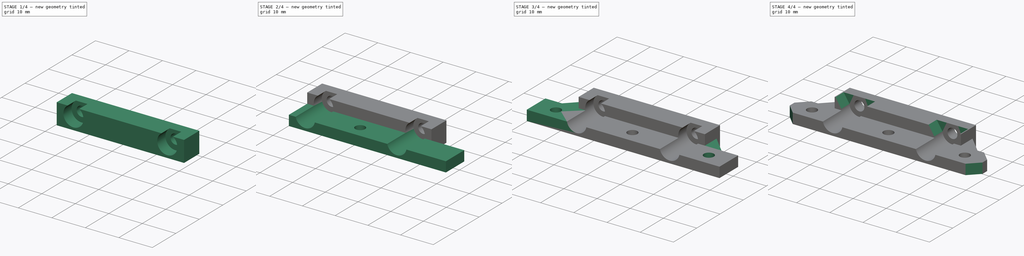
[diagram: build sequence overview — one tinted view per stage of 4, left to right]
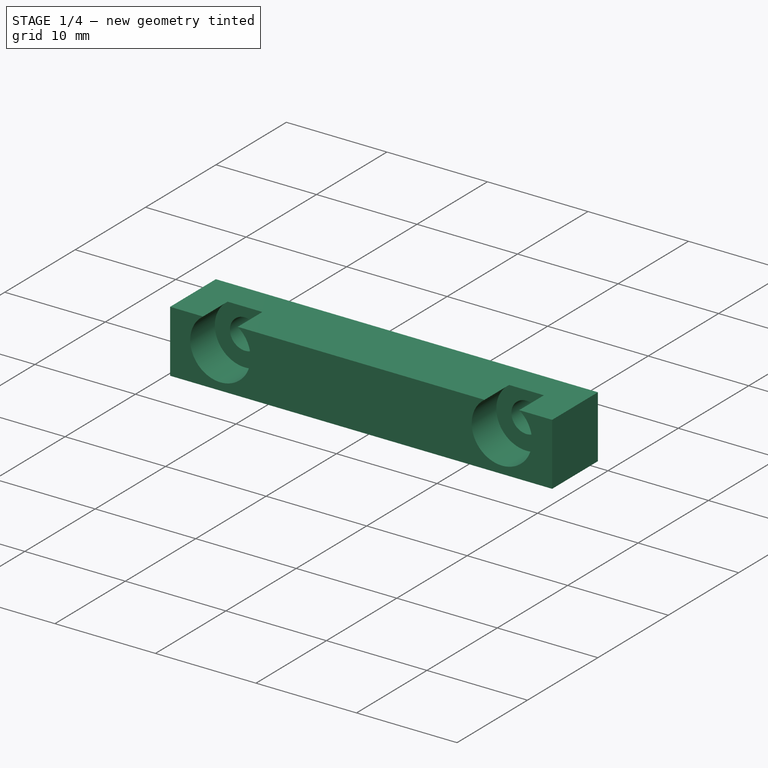
[diagram: stage 1 of 4 — iso view after this stage's code; geometry added in this stage tinted green]
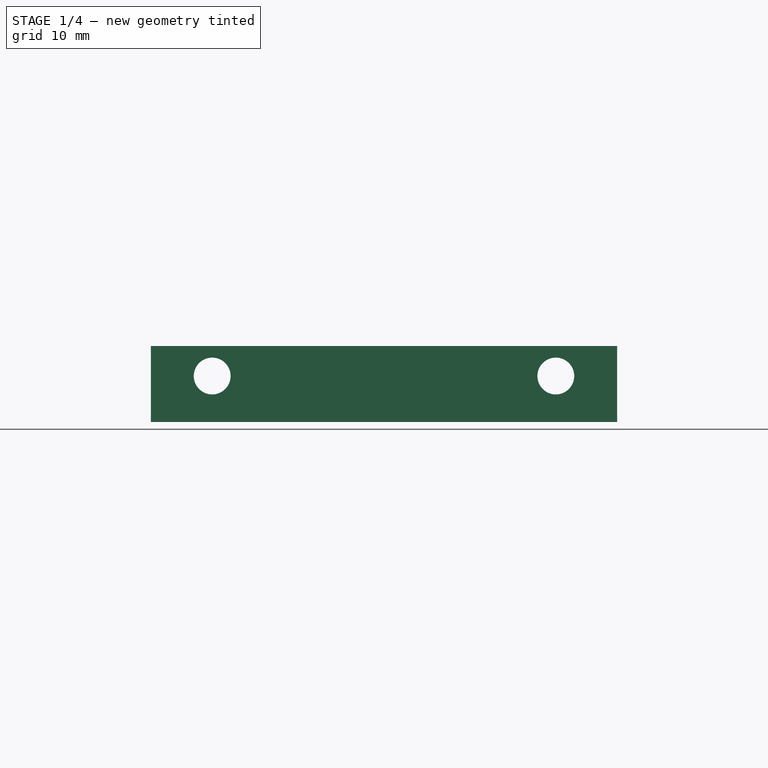
[diagram: stage 1 of 4 — front view after this stage's code; geometry added in this stage tinted green]
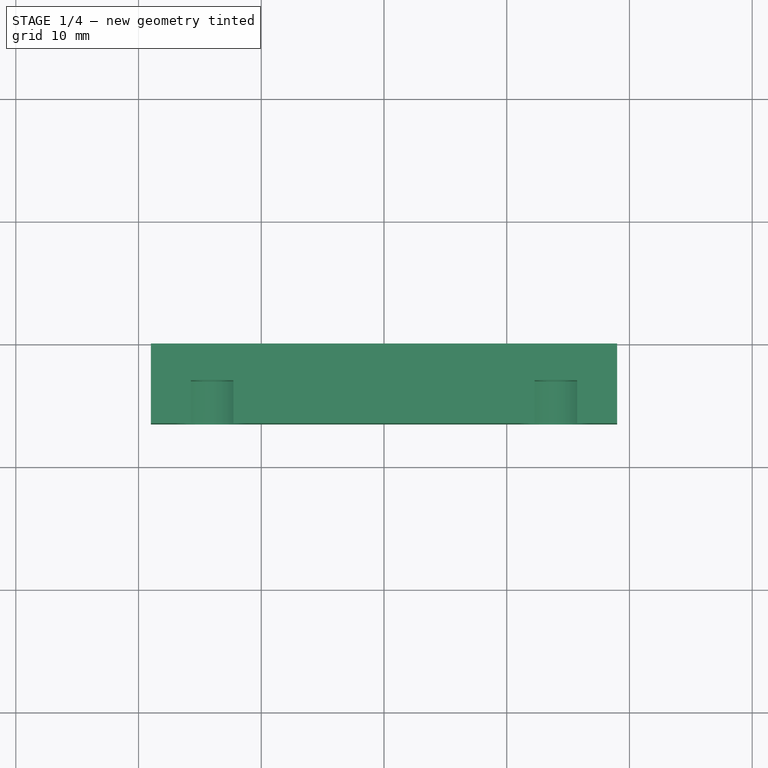
[diagram: stage 1 of 4 — top view after this stage's code; geometry added in this stage tinted green]
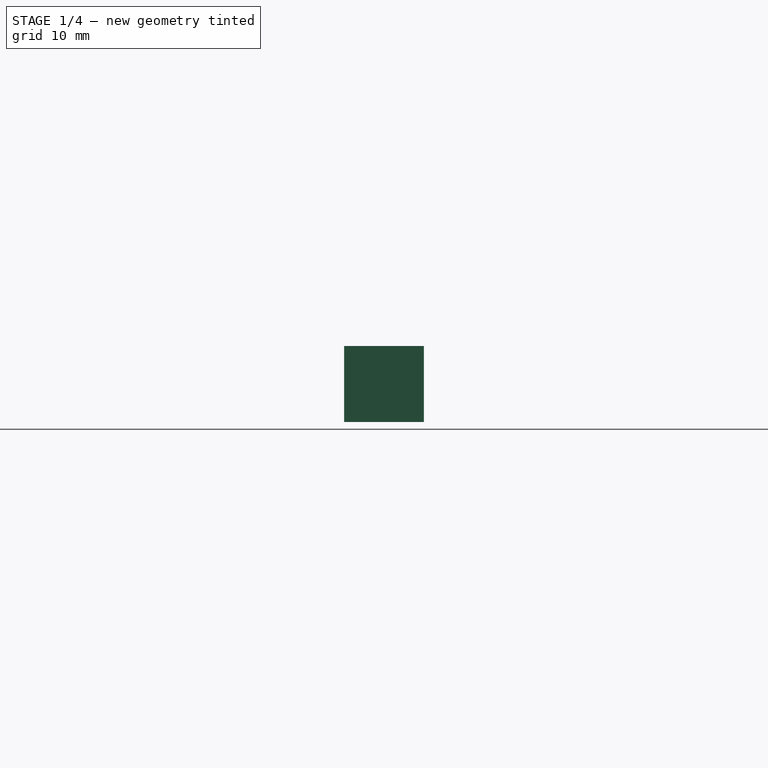
[diagram: stage 1 of 4 — right view after this stage's code; geometry added in this stage tinted green]
FCSTD DOCUMENT  (FreeCAD 1.0R39109 (Git))
Label: Bolt Down Brakets
License: All rights reserved
LicenseURL: https://en.wikipedia.org/wiki/All_rights_reserved
objects: Sketcher::SketchObject×7, PartDesign::Pad×5, PartDesign::Chamfer×3, PartDesign::Pocket×2, PartDesign::Body×1
note: 45 computed .brp shape members not serialized (recipe doc carries the construction recipe); baked Part::Feature solids carry a one-line shape summary decoded from their .brp

FEATURE [Sketcher::SketchObject] Sketch
  ArcFitTolerance = 1e-06
  AttachmentSupport = -> [XZ_Plane]
  FullyConstrained = true
  MakeInternals = false
  MapMode = 5
  Placement = pos=(0,0,0) rot=(1,0,0;1.5708rad)
  sketch-geometry (11):
    g0: LineSegment [constr] StartX=0 StartY=0 StartZ=0 EndX=0 EndY=3.75 EndZ=0
    g1: LineSegment [constr] StartX=0 StartY=3.75 StartZ=0 EndX=14 EndY=3.75 EndZ=0
    g2: LineSegment [constr] StartX=0 StartY=3.75 StartZ=0 EndX=-14 EndY=3.75 EndZ=0
    g3: Circle CenterX=-14 CenterY=3.75 CenterZ=0 NormalX=0 NormalY=0 NormalZ=1 AngleXU=0 Radius=1.5
    g4: Circle CenterX=14 CenterY=3.75 CenterZ=0 NormalX=0 NormalY=0 NormalZ=1 AngleXU=0 Radius=1.5
    g5: LineSegment [constr] StartX=0 StartY=0 StartZ=0 EndX=-19 EndY=0 EndZ=0
    g6: LineSegment [constr] StartX=-19 StartY=0 StartZ=0 EndX=-19 EndY=6.2 EndZ=0
    g7: LineSegment StartX=-19 StartY=6.2 StartZ=0 EndX=-19 EndY=0 EndZ=0
    g8: LineSegment StartX=-19 StartY=0 StartZ=0 EndX=19 EndY=0 EndZ=0
    g9: LineSegment StartX=19 StartY=0 StartZ=0 EndX=19 EndY=6.2 EndZ=0
    g10: LineSegment StartX=19 StartY=6.2 StartZ=0 EndX=-19 EndY=6.2 EndZ=0
  constraints (30):
    c: Distance(g0) = 3.75
    c: Coincident(g0,g-1)
    c: PointOnObject(g0,g-2)
    c: Distance(g1) = 14
    c: Coincident(g1,g0)
    c: Horizontal(g1)
    c: Coincident(g2,g0)
    c: Horizontal(g2)
    c: Equal(g2,g1)
    c: Diameter(g3) = 3
    c: Coincident(g3,g2)
    c: Diameter(g4) = 3
    c: Coincident(g4,g1)
    c: Distance(g5) = 19
    c: Coincident(g5,g0)
    c: Horizontal(g5)
    c: Distance(g6) = 6.2
    c: Coincident(g6,g5)
    c: Vertical(g6)
    c: Coincident(g7,g8)
    c: Coincident(g8,g9)
    c: Coincident(g9,g10)
    c: Coincident(g10,g7)
    c: Vertical(g7)
    c: Vertical(g9)
    c: Horizontal(g8)
    c: Horizontal(g10)
    c: Distance(g7,g9) = 38
    c: Coincident(g7,g6)
    c: PointOnObject(g8,g-1)
FEATURE [PartDesign::Pad] Pad
  Direction = (0,-1,2e-16)
  Length = 3
  Length2 = 10
  Placement = pos=(0,0,0) rot=(1,0,0;1.5708rad)
  Profile = -> Sketch
  ReferenceAxis = -> Sketch [N_Axis]
  Refine = true
  Suppressed = false
  Type = 0
FEATURE [Sketcher::SketchObject] Sketch001
  ArcFitTolerance = 1e-06
  AttachmentSupport = -> [Pad]
  ExternalGeometry = -> [Pad]
  FullyConstrained = true
  MakeInternals = false
  MapMode = 5
  Placement = pos=(0,-3,0) rot=(1,0,0;1.5708rad)
  sketch-geometry (14):
    g0: Circle [constr] CenterX=-14 CenterY=3.75 CenterZ=0 NormalX=0 NormalY=0 NormalZ=1 AngleXU=0 Radius=3
    g1: Circle [constr] CenterX=14 CenterY=3.75 CenterZ=0 NormalX=0 NormalY=0 NormalZ=1 AngleXU=0 Radius=3
    g2: GeomPoint [constr] X=-12.2687 Y=6.2 Z=0
    g3: GeomPoint [constr] X=-15.7313 Y=6.2 Z=0
    g4: GeomPoint [constr] X=12.2687 Y=6.2 Z=0
    g5: GeomPoint [constr] X=15.7313 Y=6.2 Z=0
    g6: ArcOfCircle CenterX=-14 CenterY=3.75 CenterZ=0 NormalX=0 NormalY=0 NormalZ=1 AngleXU=0 Radius=3 StartAngle=2.18598 EndAngle=7.2388
    g7: ArcOfCircle CenterX=14 CenterY=3.75 CenterZ=0 NormalX=0 NormalY=0 NormalZ=1 AngleXU=0 Radius=3 StartAngle=2.18598 EndAngle=7.2388
    g8: LineSegment StartX=-12.2687 StartY=6.2 StartZ=0 EndX=12.2687 EndY=6.2 EndZ=0
    g9: LineSegment StartX=15.7313 StartY=6.2 StartZ=0 EndX=19 EndY=6.2 EndZ=0
    g10: LineSegment StartX=19 StartY=6.2 StartZ=0 EndX=19 EndY=0 EndZ=0
    g11: LineSegment StartX=19 StartY=0 StartZ=0 EndX=-19 EndY=0 EndZ=0
    g12: LineSegment StartX=-19 StartY=0 StartZ=0 EndX=-19 EndY=6.2 EndZ=0
    g13: LineSegment StartX=-19 StartY=6.2 StartZ=0 EndX=-15.7313 EndY=6.2 EndZ=0
  constraints (30):
    c: Diameter(g0) = 6
    c: Coincident(g0,g-8)
    c: Diameter(g1) = 6
    c: Coincident(g1,g-3)
    c: PointOnObject(g2,g0)
    c: PointOnObject(g3,g0)
    c: PointOnObject(g4,g1)
    c: PointOnObject(g5,g1)
    c: PointOnObject(g2,g-4)
    c: PointOnObject(g3,g-4)
    c: PointOnObject(g4,g-4)
    c: PointOnObject(g5,g-4)
    c: Coincident(g6,g0)
    c: Coincident(g6,g3)
    c: PointOnObject(g6,g-4)
    c: Coincident(g7,g1)
    c: Coincident(g7,g4)
    c: PointOnObject(g7,g-4)
    c: Coincident(g8,g6)
    c: Coincident(g8,g4)
    c: Coincident(g9,g7)
    c: Coincident(g9,g-5)
    c: Coincident(g10,g9)
    c: Coincident(g10,g-6)
    c: Coincident(g10,g11)
    c: Coincident(g11,g-7)
    c: Coincident(g11,g12)
    c: Coincident(g12,g-7)
    c: Coincident(g12,g13)
    c: Coincident(g13,g3)
FEATURE [PartDesign::Pad] Pad001
  BaseFeature = -> Pad
  Direction = (0,-1,2e-16)
  Length = 3.5
  Length2 = 10
  Placement = pos=(0,0,0) rot=(1,0,0;1.5708rad)
  Profile = -> Sketch001
  ReferenceAxis = -> Sketch001 [N_Axis]
  Refine = true
  Suppressed = false
  Type = 0
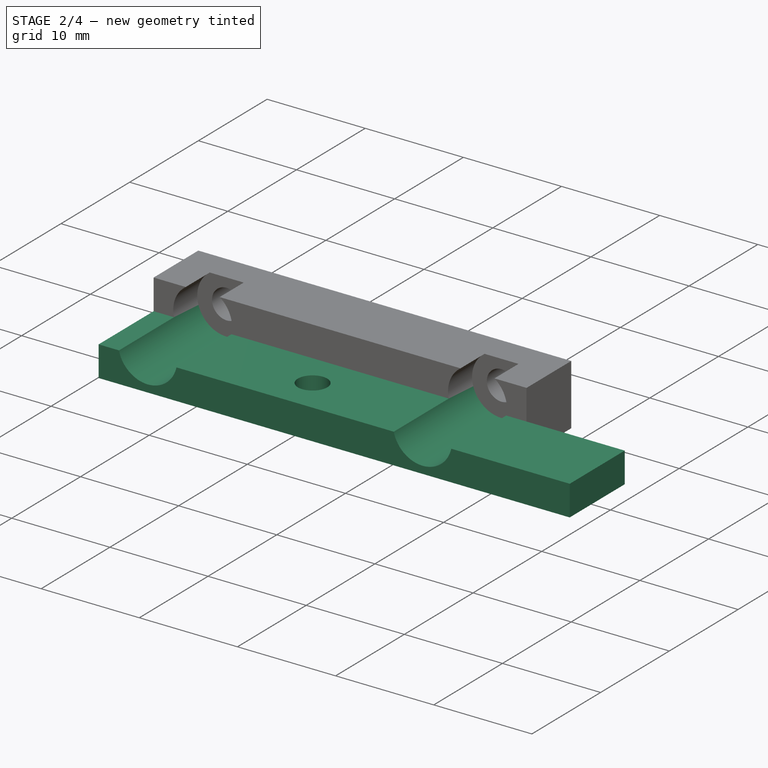
[diagram: stage 2 of 4 — iso view after this stage's code; geometry added in this stage tinted green]
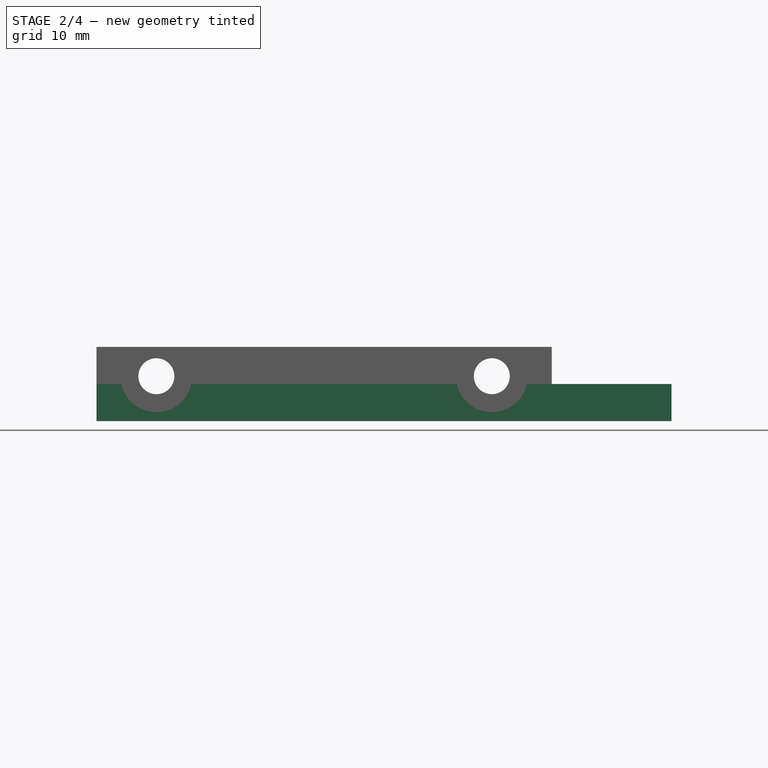
[diagram: stage 2 of 4 — front view after this stage's code; geometry added in this stage tinted green]
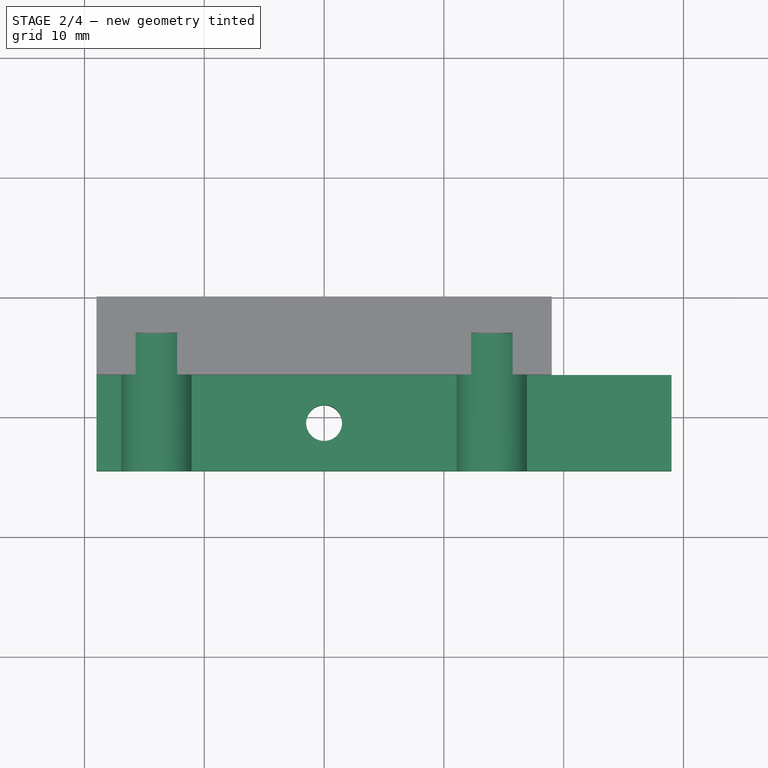
[diagram: stage 2 of 4 — top view after this stage's code; geometry added in this stage tinted green]
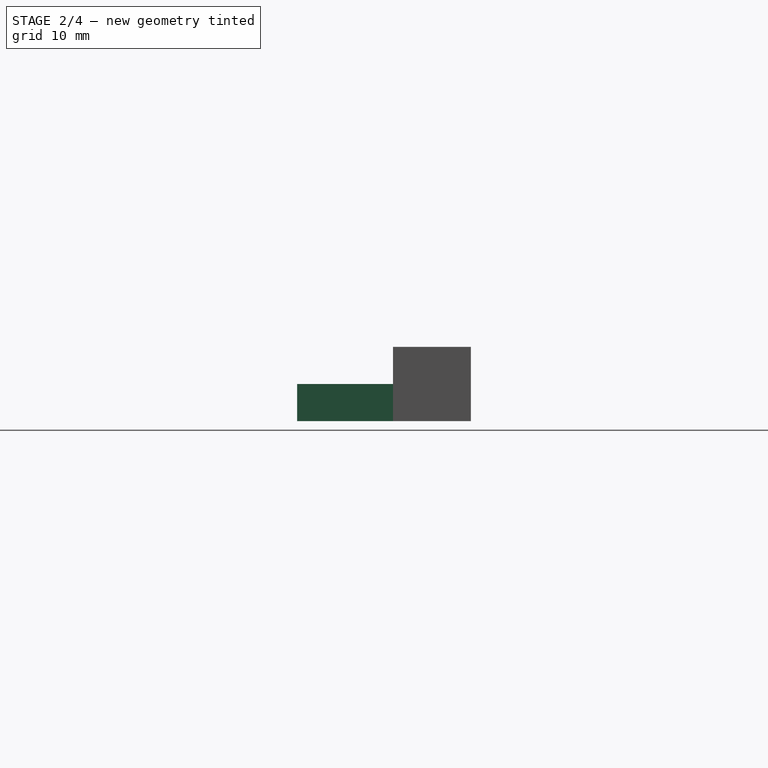
[diagram: stage 2 of 4 — right view after this stage's code; geometry added in this stage tinted green]
FEATURE [Sketcher::SketchObject] Sketch002
  ArcFitTolerance = 1e-06
  AttachmentSupport = -> [Pad001]
  ExternalGeometry = -> [Pad001]
  FullyConstrained = true
  MakeInternals = false
  MapMode = 5
  Placement = pos=(0,-6.5,0) rot=(1,0,0;1.5708rad)
  sketch-geometry (10):
    g0: LineSegment StartX=-19 StartY=0 StartZ=0 EndX=-19 EndY=3.1 EndZ=0
    g1: LineSegment StartX=19 StartY=0 StartZ=0 EndX=19 EndY=3.1 EndZ=0
    g2: LineSegment StartX=-19 StartY=3.1 StartZ=0 EndX=-16.9287 EndY=3.1 EndZ=0
    g3: LineSegment StartX=-19 StartY=0 StartZ=0 EndX=19 EndY=0 EndZ=0
    g4: LineSegment StartX=19 StartY=3.1 StartZ=0 EndX=16.9287 EndY=3.1 EndZ=0
    g5: GeomPoint [constr] X=-11.0713 Y=3.1 Z=0
    g6: GeomPoint [constr] X=11.0713 Y=3.1 Z=0
    g7: ArcOfCircle CenterX=-14 CenterY=3.75 CenterZ=0 NormalX=0 NormalY=0 NormalZ=1 AngleXU=0 Radius=3 StartAngle=3.35999 EndAngle=6.06479
    g8: ArcOfCircle CenterX=14 CenterY=3.75 CenterZ=0 NormalX=0 NormalY=0 NormalZ=1 AngleXU=0 Radius=3 StartAngle=3.35999 EndAngle=6.06479
    g9: LineSegment StartX=-11.0713 StartY=3.1 StartZ=0 EndX=11.0713 EndY=3.1 EndZ=0
  constraints (24):
    c: Coincident(g0,g-10)
    c: Symmetric(g-8,g-8,g0)
    c: Coincident(g1,g-10)
    c: Symmetric(g-7,g-7,g1)
    c: Coincident(g2,g0)
    c: PointOnObject(g2,g-3)
    c: Horizontal(g2)
    c: Coincident(g3,g0)
    c: Coincident(g3,g1)
    c: Coincident(g4,g1)
    c: PointOnObject(g4,g-5)
    c: Horizontal(g4)
    c: PointOnObject(g5,g-3)
    c: PointOnObject(g6,g-5)
    c: Horizontal(g5,g2)
    c: Horizontal(g6,g4)
    c: Coincident(g7,g-3)
    c: Coincident(g7,g5)
    c: PointOnObject(g7,g2)
    c: Coincident(g8,g-5)
    c: Coincident(g8,g6)
    c: PointOnObject(g8,g4)
    c: Coincident(g9,g5)
    c: Coincident(g9,g6)
FEATURE [PartDesign::Pad] Pad002
  BaseFeature = -> Pad001
  Direction = (0,-1,2e-16)
  Length = 8
  Length2 = 10
  Placement = pos=(0,0,0) rot=(1,0,0;1.5708rad)
  Profile = -> Sketch002
  ReferenceAxis = -> Sketch002 [N_Axis]
  Refine = true
  Suppressed = false
  Type = 0
FEATURE [Sketcher::SketchObject] Sketch003
  ArcFitTolerance = 1e-06
  AttachmentSupport = -> [Pad002]
  ExternalGeometry = -> [Pad002]
  FullyConstrained = true
  MakeInternals = false
  MapMode = 5
  Placement = pos=(0,7e-16,3.1) rot=(0,0,1;3.14159rad)
  sketch-geometry (5):
    g0: GeomPoint X=2e-16 Y=14.5 Z=0
    g1: GeomPoint X=11.0713 Y=10.5 Z=0
    g2: LineSegment [constr] StartX=2e-16 StartY=14.5 StartZ=0 EndX=0 EndY=10.5 EndZ=0
    g3: LineSegment [constr] StartX=0 StartY=10.5 StartZ=0 EndX=11.0713 EndY=10.5 EndZ=0
    g4: Circle CenterX=0 CenterY=10.5 CenterZ=0 NormalX=0 NormalY=0 NormalZ=1 AngleXU=0 Radius=1.5
  constraints (9):
    c: Symmetric(g-3,g-3,g0)
    c: Symmetric(g-4,g-4,g1)
    c: Coincident(g2,g0)
    c: PointOnObject(g2,g-2)
    c: Coincident(g2,g3)
    c: Coincident(g3,g1)
    c: Perpendicular(g3,g2)
    c: Diameter(g4) = 3
    c: Coincident(g4,g2)
FEATURE [PartDesign::Pocket] Pocket
  BaseFeature = -> Pad002
  Direction = (0,0,-1)
  Length = 5
  Length2 = 5
  Placement = pos=(0,0,0) rot=(1,0,0;1.5708rad)
  Profile = -> Sketch003
  ReferenceAxis = -> Sketch003 [N_Axis]
  Refine = true
  Suppressed = false
  Type = 1
FEATURE [Sketcher::SketchObject] Sketch004
  ArcFitTolerance = 1e-06
  AttachmentSupport = -> [Pocket]
  ExternalGeometry = -> [Pocket]
  FullyConstrained = true
  MakeInternals = false
  MapMode = 5
  Placement = pos=(19,-5.8e-15,0) rot=(0.707107,0,0.707107;3.14159rad)
  sketch-geometry (4):
    g0: LineSegment StartX=3.1 StartY=6.5 StartZ=0 EndX=1.3e-15 EndY=6.5 EndZ=0
    g1: LineSegment StartX=3.1 StartY=6.5 StartZ=0 EndX=3.1 EndY=14.5 EndZ=0
    g2: LineSegment StartX=0 StartY=14.5 StartZ=0 EndX=3.1 EndY=14.5 EndZ=0
    g3: LineSegment StartX=0 StartY=14.5 StartZ=0 EndX=1.3e-15 EndY=6.5 EndZ=0
  constraints (9):
    c: Coincident(g0,g-3)
    c: PointOnObject(g0,g-5)
    c: Horizontal(g0)
    c: Coincident(g1,g0)
    c: Coincident(g1,g-4)
    c: Coincident(g2,g-5)
    c: Coincident(g2,g1)
    c: Coincident(g3,g2)
    c: Coincident(g3,g0)
FEATURE [PartDesign::Pad] Pad003
  BaseFeature = -> Pocket
  Direction = (1,0,-2e-16)
  Length = 10
  Length2 = 10
  Placement = pos=(0,0,0) rot=(1,0,0;1.5708rad)
  Profile = -> Sketch004
  ReferenceAxis = -> Sketch004 [N_Axis]
  Refine = true
  Suppressed = false
  Type = 0
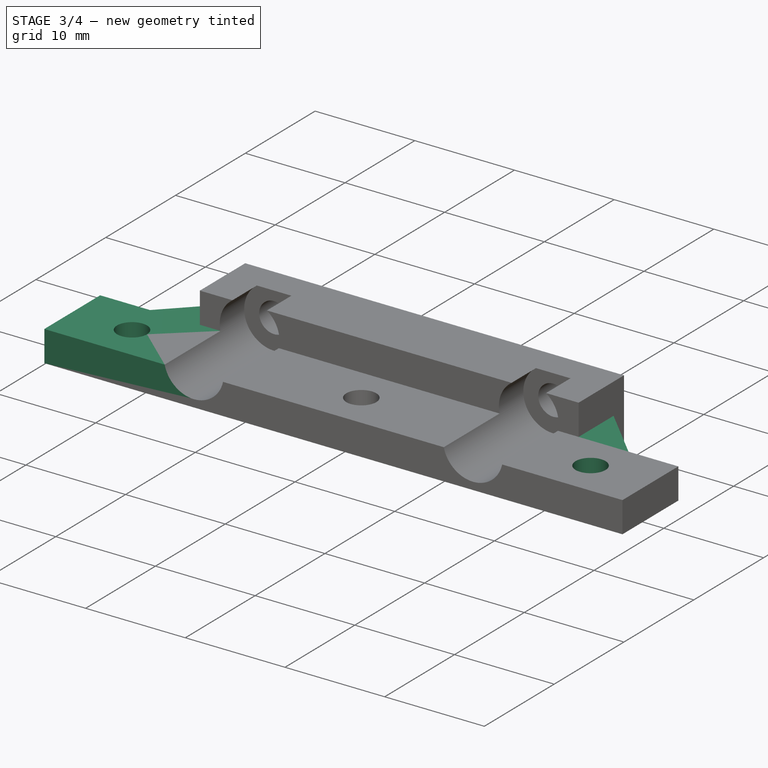
[diagram: stage 3 of 4 — iso view after this stage's code; geometry added in this stage tinted green]
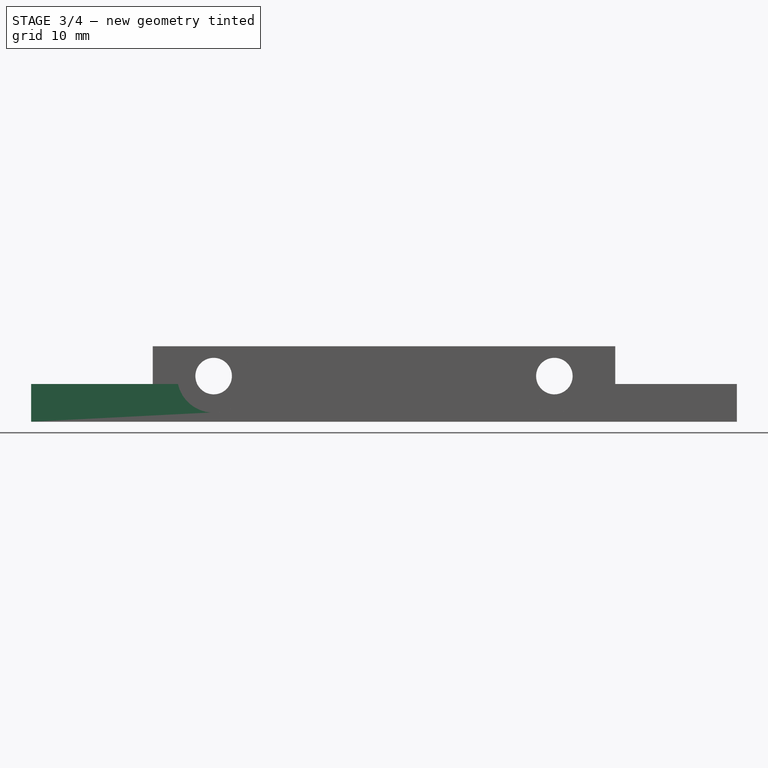
[diagram: stage 3 of 4 — front view after this stage's code; geometry added in this stage tinted green]
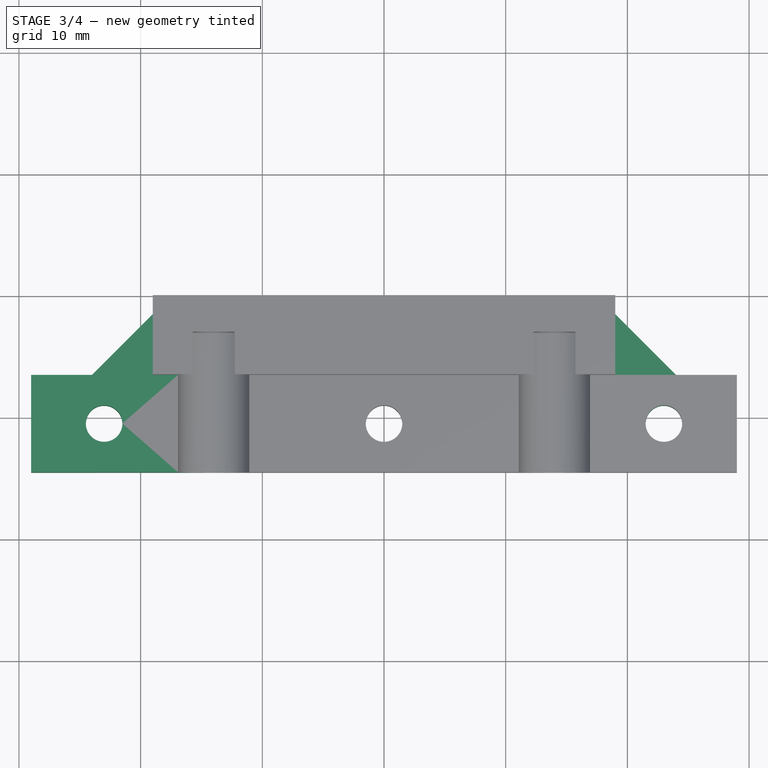
[diagram: stage 3 of 4 — top view after this stage's code; geometry added in this stage tinted green]
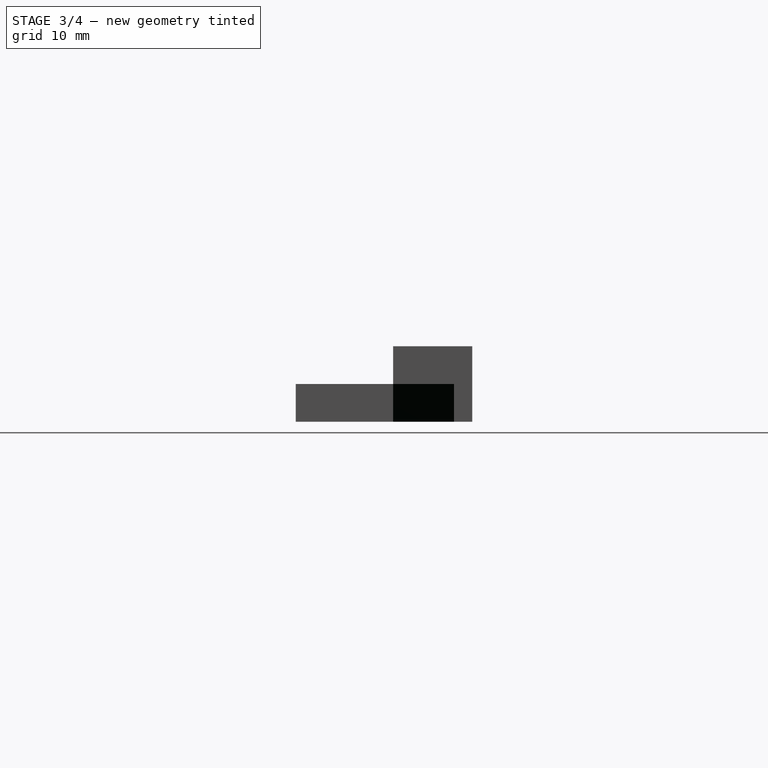
[diagram: stage 3 of 4 — right view after this stage's code; geometry added in this stage tinted green]
FEATURE [Sketcher::SketchObject] Sketch005
  ArcFitTolerance = 1e-06
  AttachmentSupport = -> [Pad003]
  ExternalGeometry = -> [Pad003]
  FullyConstrained = true
  MakeInternals = false
  MapMode = 5
  Placement = pos=(-19,-5.8e-15,0) rot=(0.707107,0,-0.707107;3.14159rad)
  sketch-geometry (4):
    g0: LineSegment StartX=-3.1 StartY=6.5 StartZ=0 EndX=0 EndY=6.5 EndZ=0
    g1: LineSegment StartX=0 StartY=6.5 StartZ=0 EndX=0 EndY=14.5 EndZ=0
    g2: LineSegment StartX=0 StartY=14.5 StartZ=0 EndX=-3.1 EndY=14.5 EndZ=0
    g3: LineSegment StartX=-3.1 StartY=14.5 StartZ=0 EndX=-3.1 EndY=6.5 EndZ=0
  constraints (9):
    c: Coincident(g0,g-3)
    c: PointOnObject(g0,g-5)
    c: Horizontal(g0)
    c: Coincident(g1,g0)
    c: Coincident(g1,g-5)
    c: Coincident(g2,g1)
    c: Coincident(g2,g-4)
    c: Coincident(g3,g2)
    c: Coincident(g3,g0)
FEATURE [PartDesign::Pad] Pad004
  BaseFeature = -> Pad003
  Direction = (-1,0,-2e-16)
  Length = 10
  Length2 = 10
  Placement = pos=(0,0,0) rot=(1,0,0;1.5708rad)
  Profile = -> Sketch005
  ReferenceAxis = -> Sketch005 [N_Axis]
  Refine = true
  Suppressed = false
  Type = 0
FEATURE [Sketcher::SketchObject] Sketch006
  ArcFitTolerance = 1e-06
  AttachmentSupport = -> [Pad004]
  ExternalGeometry = -> [Pad004]
  FullyConstrained = true
  MakeInternals = false
  MapMode = 5
  Placement = pos=(-1.4e-15,2e-16,3.1) rot=(0,0,1;3.14159rad)
  sketch-geometry (4):
    g0: LineSegment [constr] StartX=-1.4e-15 StartY=10.5 StartZ=0 EndX=23 EndY=10.5 EndZ=0
    g1: LineSegment [constr] StartX=-1.4e-15 StartY=10.5 StartZ=0 EndX=-23 EndY=10.5 EndZ=0
    g2: Circle CenterX=-23 CenterY=10.5 CenterZ=0 NormalX=0 NormalY=0 NormalZ=1 AngleXU=0 Radius=1.5
    g3: Circle CenterX=23 CenterY=10.5 CenterZ=0 NormalX=0 NormalY=0 NormalZ=1 AngleXU=0 Radius=1.5
  constraints (10):
    c: Distance(g0) = 23
    c: Coincident(g0,g-3)
    c: Horizontal(g0)
    c: Coincident(g1,g0)
    c: Horizontal(g1)
    c: Equal(g1,g0)
    c: Diameter(g2) = 3
    c: Coincident(g2,g1)
    c: Diameter(g3) = 3
    c: Coincident(g3,g0)
FEATURE [PartDesign::Pocket] Pocket001
  BaseFeature = -> Pad004
  Direction = (0,0,-1)
  Length = 5
  Length2 = 5
  Placement = pos=(0,0,0) rot=(1,0,0;1.5708rad)
  Profile = -> Sketch006
  ReferenceAxis = -> Sketch006 [N_Axis]
  Refine = true
  Suppressed = false
  Type = 1
FEATURE [PartDesign::Chamfer] Chamfer
  Angle = 45
  Base = -> Pocket001 [Edge9,Edge20]
  BaseFeature = -> Pocket001
  ChamferType = 0
  FlipDirection = false
  Placement = pos=(0,0,0) rot=(1,0,0;1.5708rad)
  Refine = true
  Size = 5
  Size2 = 1
  SupportTransform = false
  Suppressed = false
  UseAllEdges = false
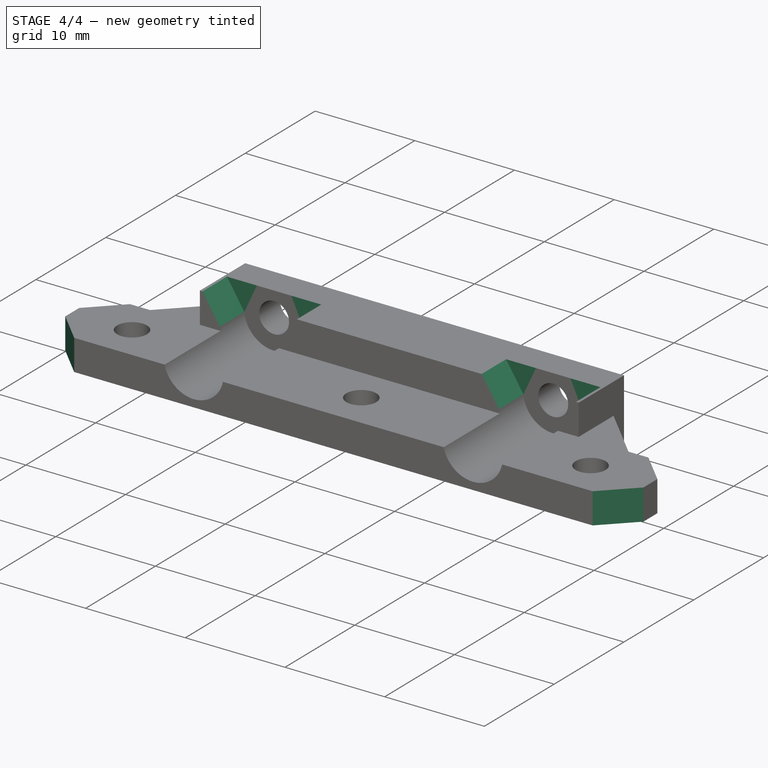
[diagram: stage 4 of 4 — iso view after this stage's code; geometry added in this stage tinted green]
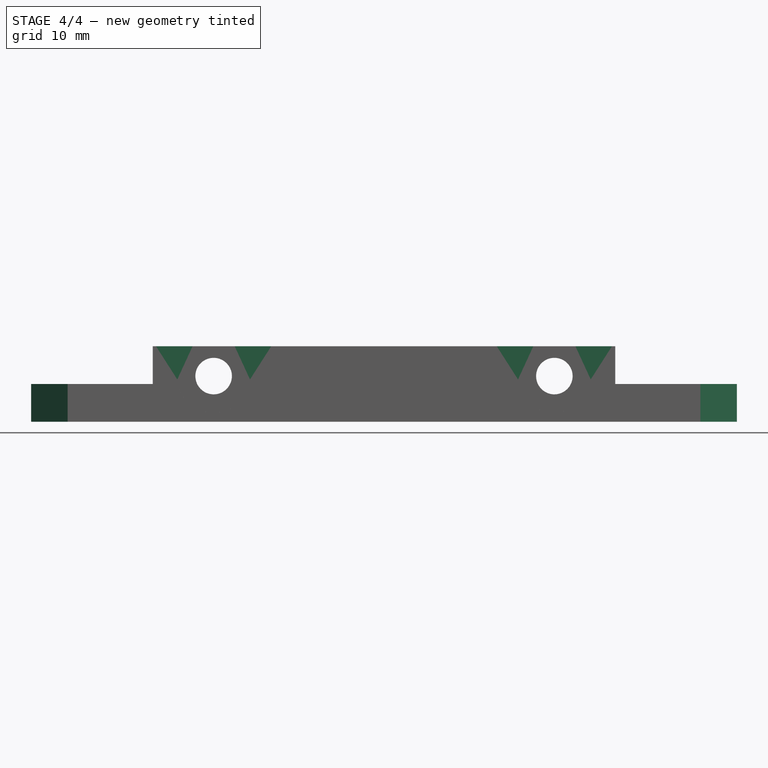
[diagram: stage 4 of 4 — front view after this stage's code; geometry added in this stage tinted green]
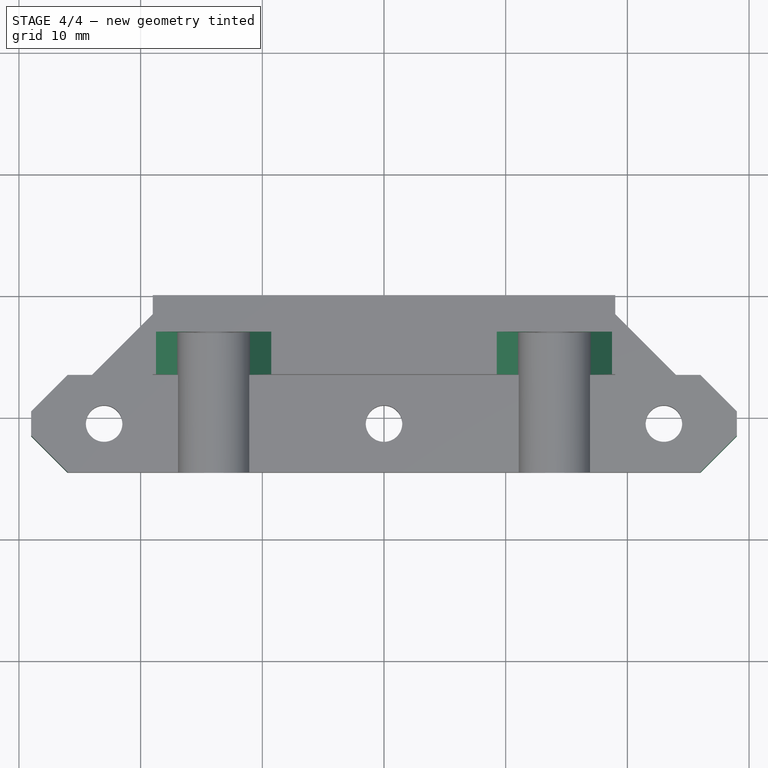
[diagram: stage 4 of 4 — top view after this stage's code; geometry added in this stage tinted green]
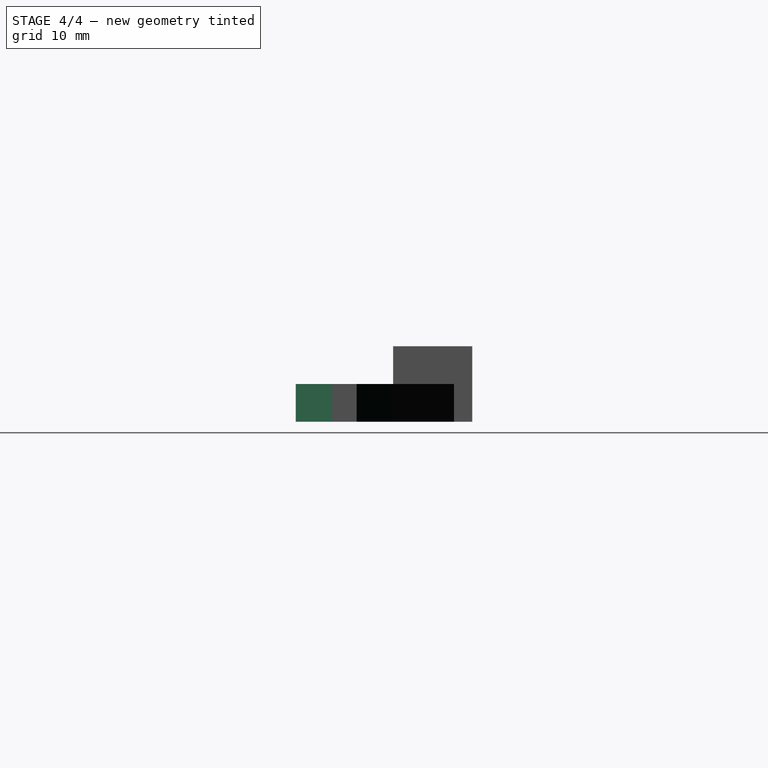
[diagram: stage 4 of 4 — right view after this stage's code; geometry added in this stage tinted green]
FEATURE [PartDesign::Chamfer] Chamfer001
  Angle = 45
  Base = -> Chamfer [Edge42,Edge55,Edge46,Edge49]
  BaseFeature = -> Chamfer
  ChamferType = 0
  FlipDirection = false
  Placement = pos=(0,0,0) rot=(1,0,0;1.5708rad)
  Refine = true
  Size = 3
  Size2 = 1
  SupportTransform = false
  Suppressed = false
  UseAllEdges = false
FEATURE [PartDesign::Chamfer] Chamfer002
  Angle = 45
  Base = -> Chamfer001 [Edge67,Edge65,Edge69,Edge71]
  BaseFeature = -> Chamfer001
  ChamferType = 0
  FlipDirection = false
  Placement = pos=(0,0,0) rot=(1,0,0;1.5708rad)
  Refine = true
  Size = 3
  Size2 = 1
  SupportTransform = false
  Suppressed = false
  UseAllEdges = false
FEATURE [PartDesign::Body] Body  label="Easy Stage Bolt Down"
  AllowCompound = false
  Group = -> [Sketch,Pad,Sketch001,Pad001,Sketch002,Pad002,Sketch003,Pocket,Sketch004,Pad003,Sketch005,Pad004,Sketch006,Pocket001,Chamfer,Chamfer001,Chamfer002]
  Origin = -> Origin
  Tip = -> Chamfer002
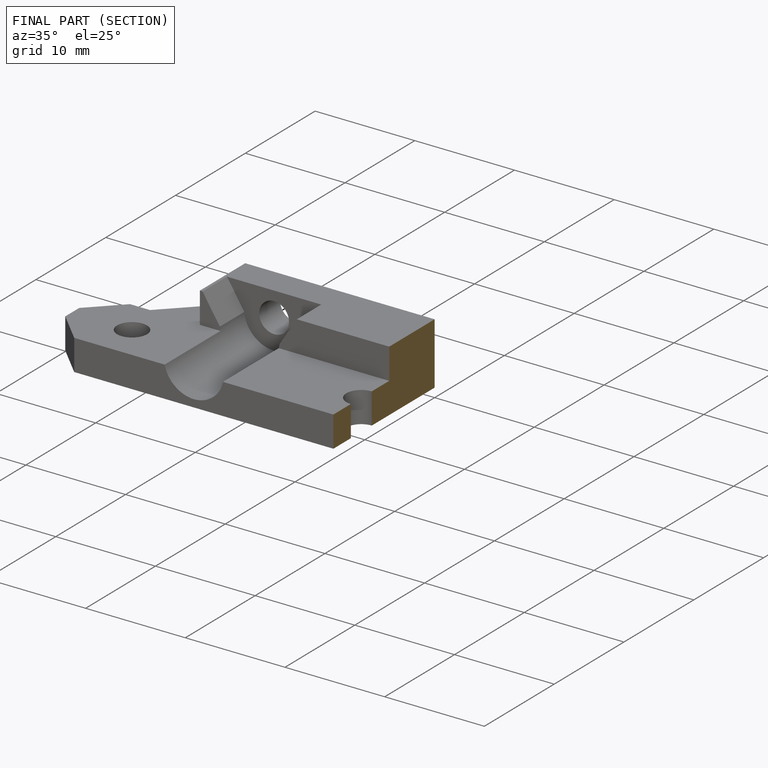
[diagram: finished part — half-section view (interior)]
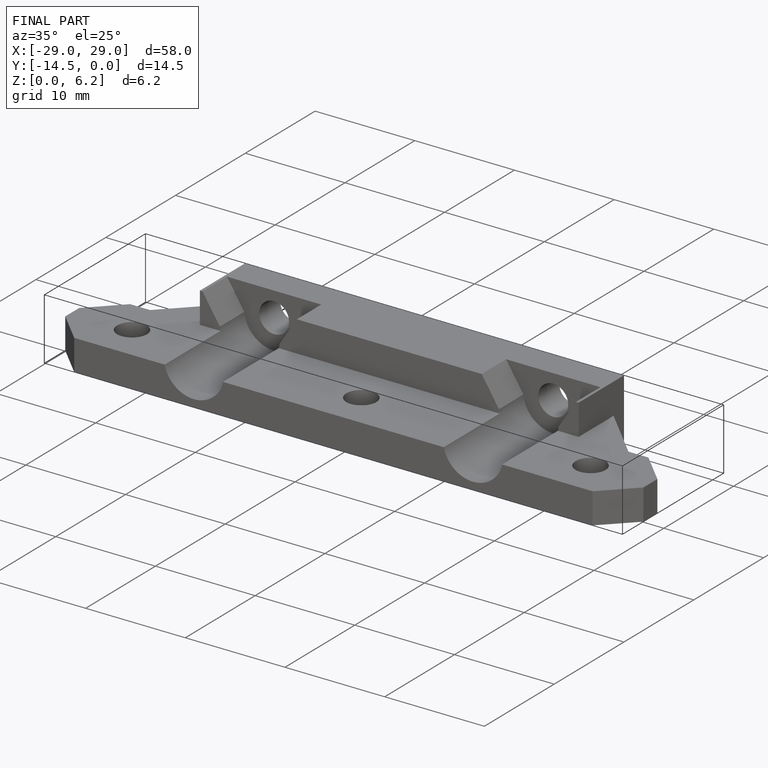
[diagram: finished part — iso view with bounding-box wireframe]
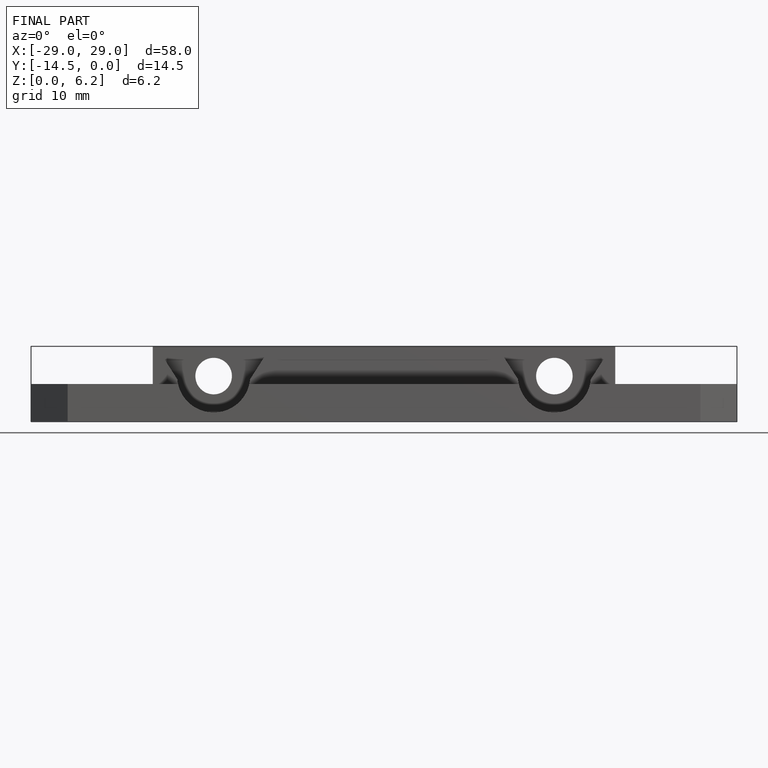
[diagram: finished part — front view with bounding-box wireframe]
